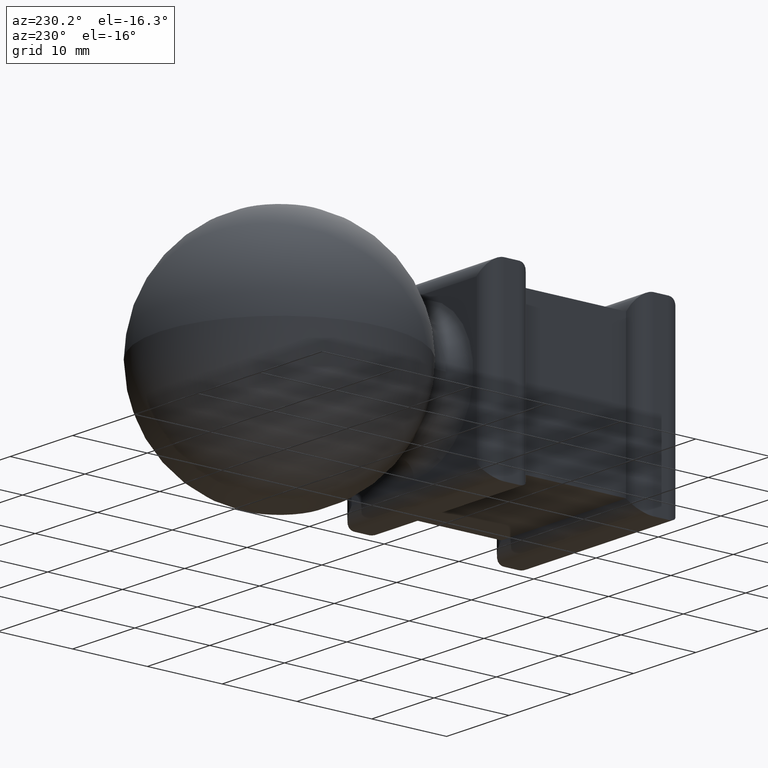
[diagram: clean part render]
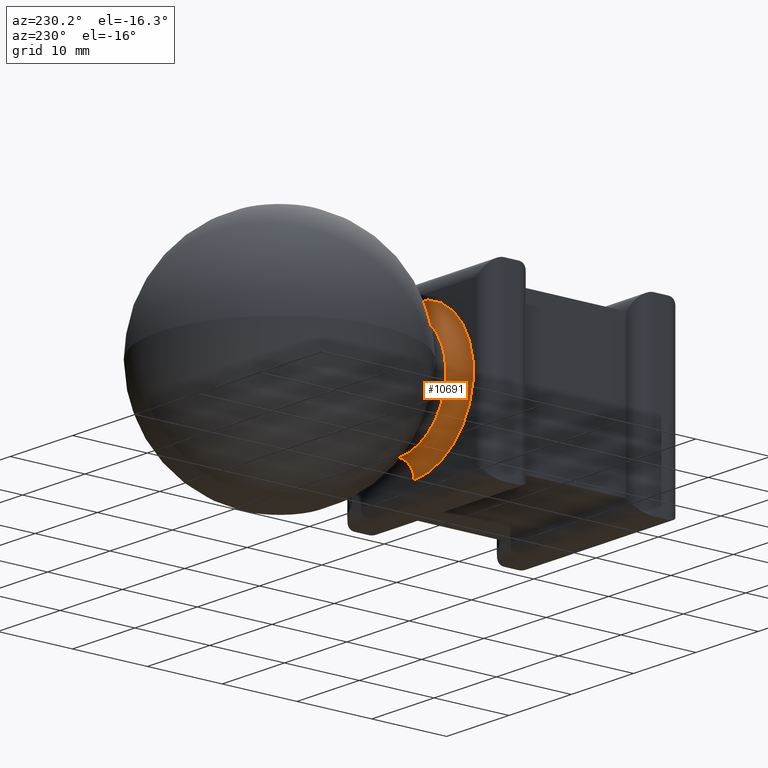
[diagram: same view with one face highlighted and labeled with its STEP entity id]
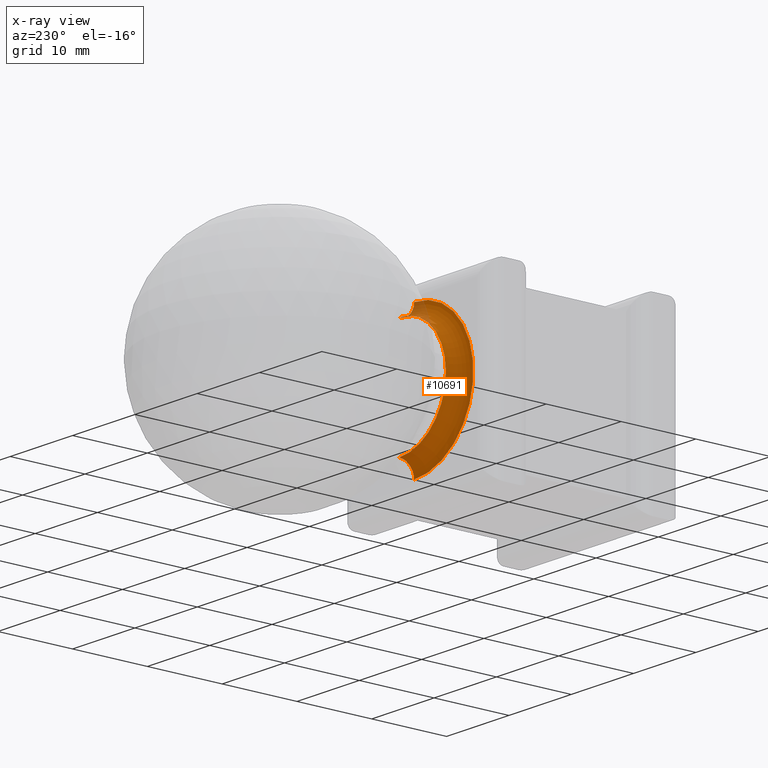
[diagram: x-ray of the same camera — body ghosted, the highlighted face saturated]
A machine part, auxiliary view. The second image highlights one B-rep face of the part: STEP entity #10691.
The next image is the same camera in x-ray: the body ghosted, the highlighted face saturated — about 5% of this face is hidden behind the body in this view.
In plain terms, the highlighted toroidal blend (fillet) surface has major radius 9.5 mm and minor (blend) radius 2 mm.
Its self-contained STEP definition (entity closure, byte-faithful):
#339 = CARTESIAN_POINT ( 'NONE',  ( 0.0000000000000000000, 28.00000000000000400, 7.499999999999997300 ) ) ;
#372 = EDGE_CURVE ( 'NONE', #3836, #2426, #9993, .T. ) ;
#417 = CARTESIAN_POINT ( 'NONE',  ( 0.0000000000000000000, 26.00000000000000400, 9.499999999999998200 ) ) ;
#441 = DIRECTION ( 'NONE',  ( 1.224646799147353500E-016, 0.0000000000000000000, -1.000000000000000000 ) ) ;
#484 = DIRECTION ( 'NONE',  ( 1.000000000000000000, -0.0000000000000000000, 1.224646799147353200E-016 ) ) ;
#701 = ORIENTED_EDGE ( 'NONE', *, *, #5439, .F. ) ;
#1178 = DIRECTION ( 'NONE',  ( 0.0000000000000000000, 0.0000000000000000000, 1.000000000000000000 ) ) ;
#1246 = EDGE_CURVE ( 'NONE', #2426, #3574, #7935, .T. ) ;
#1793 = FACE_OUTER_BOUND ( 'NONE', #5781, .T. ) ;
#1981 = ORIENTED_EDGE ( 'NONE', *, *, #372, .F. ) ;
#2022 = CIRCLE ( 'NONE', #4641, 7.499999999999997300 ) ;
#2328 = CIRCLE ( 'NONE', #5958, 2.000000000000000000 ) ;
#2390 = CARTESIAN_POINT ( 'NONE',  ( 0.0000000000000000000, 28.00000000000000400, 0.0000000000000000000 ) ) ;
#2426 = VERTEX_POINT ( 'NONE', #339 ) ;
#2543 = DIRECTION ( 'NONE',  ( 0.0000000000000000000, 1.000000000000000000, 0.0000000000000000000 ) ) ;
#3045 = AXIS2_PLACEMENT_3D ( 'NONE', #2390, #10298, #7640 ) ;
#3574 = VERTEX_POINT ( 'NONE', #417 ) ;
#3650 = AXIS2_PLACEMENT_3D ( 'NONE', #4573, #8078, #9758 ) ;
#3836 = VERTEX_POINT ( 'NONE', #9610 ) ;
#4573 = CARTESIAN_POINT ( 'NONE',  ( 0.0000000000000000000, 28.00000000000000400, 0.0000000000000000000 ) ) ;
#4641 = AXIS2_PLACEMENT_3D ( 'NONE', #10193, #2543, #6053 ) ;
#4724 = DIRECTION ( 'NONE',  ( 0.0000000000000000000, 0.0000000000000000000, 1.000000000000000000 ) ) ;
#5205 = ORIENTED_EDGE ( 'NONE', *, *, #1246, .F. ) ;
#5439 = EDGE_CURVE ( 'NONE', #8699, #3836, #2022, .T. ) ;
#5471 = CARTESIAN_POINT ( 'NONE',  ( 1.040949779275249700E-015, 28.00000000000000400, -7.499999999999997300 ) ) ;
#5683 = CARTESIAN_POINT ( 'NONE',  ( 0.0000000000000000000, 26.00000000000000400, 0.0000000000000000000 ) ) ;
#5686 = CARTESIAN_POINT ( 'NONE',  ( 1.163414459189985300E-015, 28.00000000000000400, -9.499999999999998200 ) ) ;
#5781 = EDGE_LOOP ( 'NONE', ( #701, #5878, #8467, #5205, #1981 ) ) ;
#5878 = ORIENTED_EDGE ( 'NONE', *, *, #10100, .T. ) ;
#5958 = AXIS2_PLACEMENT_3D ( 'NONE', #5686, #484, #441 ) ;
#6053 = DIRECTION ( 'NONE',  ( 0.0000000000000000000, 0.0000000000000000000, 1.000000000000000000 ) ) ;
#6427 = DIRECTION ( 'NONE',  ( -1.000000000000000000, 0.0000000000000000000, 0.0000000000000000000 ) ) ;
#6532 = AXIS2_PLACEMENT_3D ( 'NONE', #5683, #6665, #1178 ) ;
#6665 = DIRECTION ( 'NONE',  ( -0.0000000000000000000, -1.000000000000000000, -0.0000000000000000000 ) ) ;
#6856 = CARTESIAN_POINT ( 'NONE',  ( 1.163414459189985300E-015, 26.00000000000000400, -9.499999999999998200 ) ) ;
#7640 = DIRECTION ( 'NONE',  ( 0.0000000000000000000, 0.0000000000000000000, 1.000000000000000000 ) ) ;
#7914 = CIRCLE ( 'NONE', #6532, 9.499999999999998200 ) ;
#7935 = CIRCLE ( 'NONE', #9157, 2.000000000000000000 ) ;
#8078 = DIRECTION ( 'NONE',  ( 0.0000000000000000000, 1.000000000000000000, 0.0000000000000000000 ) ) ;
#8231 = CARTESIAN_POINT ( 'NONE',  ( 0.0000000000000000000, 28.00000000000000400, 9.499999999999998200 ) ) ;
#8412 = TOROIDAL_SURFACE ( 'NONE', #3650, 9.499999999999998200, 2.000000000000000000 ) ;
#8430 = VERTEX_POINT ( 'NONE', #6856 ) ;
#8467 = ORIENTED_EDGE ( 'NONE', *, *, #9377, .F. ) ;
#8699 = VERTEX_POINT ( 'NONE', #5471 ) ;
#9157 = AXIS2_PLACEMENT_3D ( 'NONE', #8231, #6427, #4724 ) ;
#9377 = EDGE_CURVE ( 'NONE', #3574, #8430, #7914, .T. ) ;
#9610 = CARTESIAN_POINT ( 'NONE',  ( -7.499999999999997300, 28.00000000000000400, 9.184850993605146000E-016 ) ) ;
#9758 = DIRECTION ( 'NONE',  ( 0.0000000000000000000, 0.0000000000000000000, 1.000000000000000000 ) ) ;
#9993 = CIRCLE ( 'NONE', #3045, 7.499999999999997300 ) ;
#10100 = EDGE_CURVE ( 'NONE', #8699, #8430, #2328, .T. ) ;
#10193 = CARTESIAN_POINT ( 'NONE',  ( 0.0000000000000000000, 28.00000000000000400, 0.0000000000000000000 ) ) ;
#10298 = DIRECTION ( 'NONE',  ( 0.0000000000000000000, 1.000000000000000000, 0.0000000000000000000 ) ) ;
#10691 = ADVANCED_FACE ( 'NONE', ( #1793 ), #8412, .F. ) ;